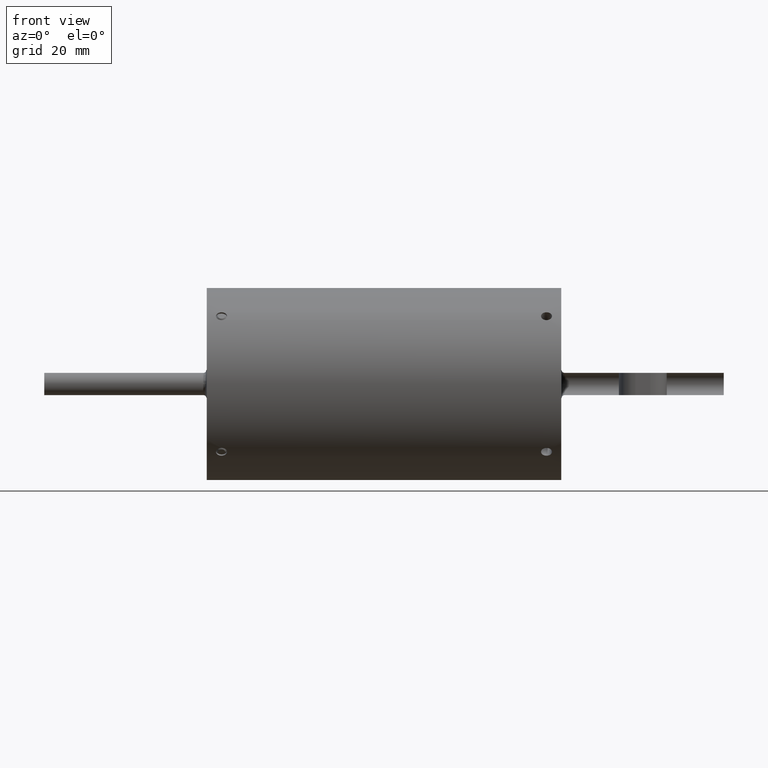
[diagram: clean part render]
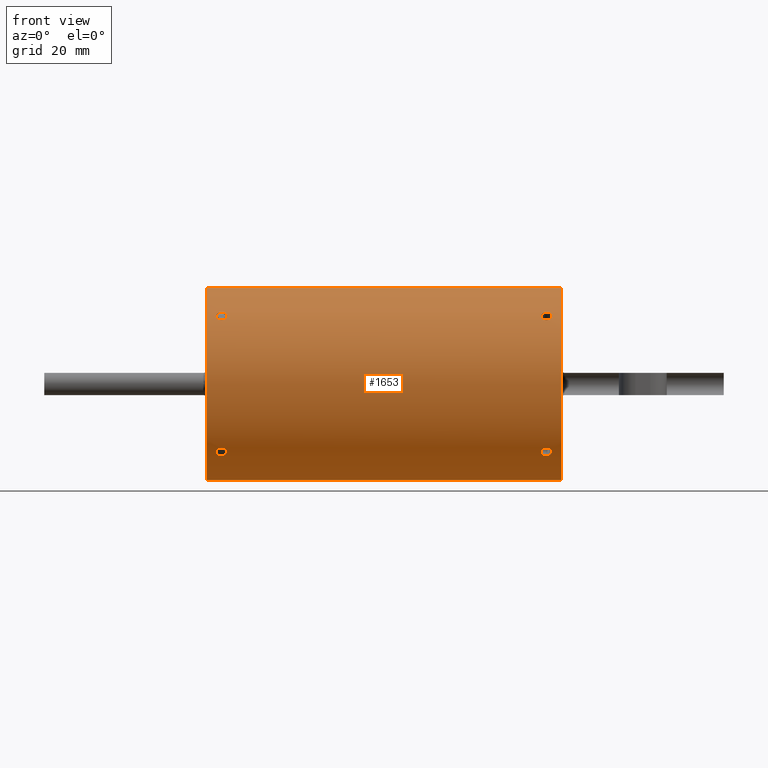
[diagram: same view with one face highlighted and labeled with its STEP entity id]
A machine part, front view. The second image highlights one B-rep face of the part: STEP entity #1653.
In plain terms, the highlighted cylindrical surface (partial cylindrical patch) has radius 20.6375 mm, axis along (-1, -0, -0).
Its self-contained STEP definition (entity closure, byte-faithful):
#232 = ORIENTED_EDGE ( 'NONE', *, *, #3644, .T. ) ;
#294 = VERTEX_POINT ( 'NONE', #4615 ) ;
#295 = DIRECTION ( 'NONE',  ( -1.000000000000000000, -0.0000000000000000000, -0.0000000000000000000 ) ) ;
#418 = ORIENTED_EDGE ( 'NONE', *, *, #4808, .T. ) ;
#495 = CARTESIAN_POINT ( 'NONE',  ( -1.375000000000000200, -0.6067129692111641300, 0.5404217084749399800 ) ) ;
#523 = EDGE_CURVE ( 'NONE', #294, #4763, #5237, .T. ) ;
#811 = EDGE_CURVE ( 'NONE', #294, #2682, #8096, .T. ) ;
#882 = CARTESIAN_POINT ( 'NONE',  ( 1.375000000000000200, -0.6067129692111716800, -0.5404217084749315400 ) ) ;
#1182 = CARTESIAN_POINT ( 'NONE',  ( -1.500000000000000200, 9.950255243072245600E-017, -0.8125000000000000000 ) ) ;
#1273 = B_SPLINE_CURVE_WITH_KNOTS ( 'NONE', 3,
 ( #5592, #5658, #5506, #5469, #5444, #5414, #5392, #5359, #5326, #5320, #5304, #5287, #5281, #5243, #5230, #5213, #5159, #5147 ),
 .UNSPECIFIED., .F., .F.,
 ( 4, 2, 2, 2, 2, 2, 2, 2, 4 ),
 ( 5.490310735162859300E-016, 0.0004653032024160632100, 0.0009306064048315773900, 0.001395909607247091500, 0.001861212809662605700, 0.002326516012078120000, 0.002791819214493633900, 0.003257122416909148100, 0.003722425619324662400 ),
 .UNSPECIFIED. ) ;
#1342 = CARTESIAN_POINT ( 'NONE',  ( -1.500000000000000200, 0.0000000000000000000, 0.8125000000000000000 ) ) ;
#1465 = B_SPLINE_CURVE_WITH_KNOTS ( 'NONE', 3,
 ( #9398, #6456, #9571, #9537, #9500, #9466, #9420, #9251, #9222, #9151, #8601, #8570, #8534, #8497, #8460, #8424, #8052, #8028 ),
 .UNSPECIFIED., .F., .F.,
 ( 4, 2, 2, 2, 2, 2, 2, 2, 4 ),
 ( 0.003722425619324662400, 0.004187729220032486400, 0.004653032820740311300, 0.005118336421448135300, 0.005583640022155960200, 0.006048943622863784200, 0.006514247223571608200, 0.006979550824279432200, 0.007444854424987257100 ),
 .UNSPECIFIED. ) ;
#1473 = EDGE_CURVE ( 'NONE', #8876, #7247, #3316, .T. ) ;
#1491 = CARTESIAN_POINT ( 'NONE',  ( 1.375000000000000200, -0.5404217084749337600, -0.6067129692111697900 ) ) ;
#1590 = CARTESIAN_POINT ( 'NONE',  ( 1.375000000000000200, -0.6067129692111641300, 0.5404217084749399800 ) ) ;
#1653 = ADVANCED_FACE ( 'NONE', ( #6485, #8473, #2459, #4366, #2188 ), #9300, .T. ) ;
#1664 = CARTESIAN_POINT ( 'NONE',  ( 1.381194354719359300, -0.6067129692111642400, 0.5404217084749400900 ) ) ;
#1959 = DIRECTION ( 'NONE',  ( 0.0000000000000000000, 0.0000000000000000000, 1.000000000000000000 ) ) ;
#1976 = CIRCLE ( 'NONE', #8802, 0.8125000000000000000 ) ;
#2068 = CARTESIAN_POINT ( 'NONE',  ( 1.375000000000000200, -0.6067129692111641300, 0.5404217084749399800 ) ) ;
#2148 = ORIENTED_EDGE ( 'NONE', *, *, #4728, .T. ) ;
#2188 = FACE_BOUND ( 'NONE', #9430, .T. ) ;
#2216 = DIRECTION ( 'NONE',  ( -1.000000000000000000, -0.0000000000000000000, -0.0000000000000000000 ) ) ;
#2232 = VERTEX_POINT ( 'NONE', #8093 ) ;
#2249 = CARTESIAN_POINT ( 'NONE',  ( 1.387284325218666000, -0.6059002631434139400, 0.5413378669100412700 ) ) ;
#2359 = CARTESIAN_POINT ( 'NONE',  ( 1.398640609744779000, -0.6027466088351831600, 0.5448470799826850000 ) ) ;
#2401 = CARTESIAN_POINT ( 'NONE',  ( 1.403797482259926400, -0.6004368981637416800, 0.5474038556743936500 ) ) ;
#2402 = EDGE_CURVE ( 'NONE', #2232, #6836, #1273, .T. ) ;
#2441 = CARTESIAN_POINT ( 'NONE',  ( 1.412541206956776000, -0.5944979079309594700, 0.5538480724435181900 ) ) ;
#2459 = FACE_BOUND ( 'NONE', #9675, .T. ) ;
#2476 = CARTESIAN_POINT ( 'NONE',  ( 1.415976050844995000, -0.5909688127341776700, 0.5576238351625277800 ) ) ;
#2643 = B_SPLINE_CURVE_WITH_KNOTS ( 'NONE', 3,
 ( #7328, #7620, #7285, #7276, #7265, #7244, #7233, #7230, #7218, #7203, #7192, #7165, #7147, #7131, #7115, #7078, #7032, #7013 ),
 .UNSPECIFIED., .F., .F.,
 ( 4, 2, 2, 2, 2, 2, 2, 2, 4 ),
 ( 0.003722425619324667200, 0.004187729220032493400, 0.004653032820740319100, 0.005118336421448144900, 0.005583640022155970600, 0.006048943622863796300, 0.006514247223571622100, 0.006979550824279448700, 0.007444854424987274400 ),
 .UNSPECIFIED. ) ;
#2682 = VERTEX_POINT ( 'NONE', #1182 ) ;
#2898 = DIRECTION ( 'NONE',  ( 0.0000000000000000000, 0.0000000000000000000, 1.000000000000000000 ) ) ;
#2932 = DIRECTION ( 'NONE',  ( -1.000000000000000000, -0.0000000000000000000, -0.0000000000000000000 ) ) ;
#2938 = CARTESIAN_POINT ( 'NONE',  ( 1.500000000000000200, 0.0000000000000000000, 0.0000000000000000000 ) ) ;
#2979 = CARTESIAN_POINT ( 'NONE',  ( 1.500000000000000200, 0.0000000000000000000, 0.0000000000000000000 ) ) ;
#3138 = CARTESIAN_POINT ( 'NONE',  ( 1.420667048215037400, -0.5831190707390199200, 0.5658273840194298900 ) ) ;
#3262 = CARTESIAN_POINT ( 'NONE',  ( 1.421879188784005400, -0.5788254297754337200, 0.5702234314123456600 ) ) ;
#3292 = CARTESIAN_POINT ( 'NONE',  ( 1.421870789102742900, -0.5701775572551545100, 0.5788706186091422400 ) ) ;
#3316 = B_SPLINE_CURVE_WITH_KNOTS ( 'NONE', 3,
 ( #5617, #5401, #5362, #5345, #5333, #5309, #5295, #5269, #5253, #5225, #5199, #5183, #5162, #5154, #5129, #5047, #5023, #5011 ),
 .UNSPECIFIED., .F., .F.,
 ( 4, 2, 2, 2, 2, 2, 2, 2, 4 ),
 ( 0.003722425619324667200, 0.004187729220032493400, 0.004653032820740319100, 0.005118336421448144900, 0.005583640022155970600, 0.006048943622863796300, 0.006514247223571622100, 0.006979550824279448700, 0.007444854424987274400 ),
 .UNSPECIFIED. ) ;
#3371 = CARTESIAN_POINT ( 'NONE',  ( -1.375000000000000200, -0.5404217084749337600, -0.6067129692111697900 ) ) ;
#3381 = VERTEX_POINT ( 'NONE', #9034 ) ;
#3644 = EDGE_CURVE ( 'NONE', #3882, #8974, #4139, .T. ) ;
#3781 = ORIENTED_EDGE ( 'NONE', *, *, #4749, .T. ) ;
#3798 = B_SPLINE_CURVE_WITH_KNOTS ( 'NONE', 3,
 ( #9447, #9353, #9105, #9069, #9015, #8931, #8695, #8664, #8634, #8626, #8592, #8564, #8556, #8481, #8448, #8415, #8381, #8341 ),
 .UNSPECIFIED., .F., .F.,
 ( 4, 2, 2, 2, 2, 2, 2, 2, 4 ),
 ( 5.490310735162859300E-016, 0.0004653032024160632100, 0.0009306064048315773900, 0.001395909607247091500, 0.001861212809662605700, 0.002326516012078120000, 0.002791819214493633900, 0.003257122416909148100, 0.003722425619324662400 ),
 .UNSPECIFIED. ) ;
#3880 = CARTESIAN_POINT ( 'NONE',  ( 1.420638414182216400, -0.5657637578153528200, 0.5831804503088706700 ) ) ;
#3882 = VERTEX_POINT ( 'NONE', #1491 ) ;
#3956 = CARTESIAN_POINT ( 'NONE',  ( 1.415961633120369300, -0.5576122985765964400, 0.5909793496865444200 ) ) ;
#3997 = CARTESIAN_POINT ( 'NONE',  ( 1.412469314699299900, -0.5537907447179333300, 0.5945509083305938700 ) ) ;
#4139 = B_SPLINE_CURVE_WITH_KNOTS ( 'NONE', 3,
 ( #7228, #8305, #7253, #7201, #7190, #7129, #7087, #7046, #6984, #6797, #6769, #6737, #6700, #6675, #6653, #6585, #6558, #6522 ),
 .UNSPECIFIED., .F., .F.,
 ( 4, 2, 2, 2, 2, 2, 2, 2, 4 ),
 ( 0.003722425619324662400, 0.004187729220032486400, 0.004653032820740311300, 0.005118336421448135300, 0.005583640022155960200, 0.006048943622863784200, 0.006514247223571608200, 0.006979550824279432200, 0.007444854424987257100 ),
 .UNSPECIFIED. ) ;
#4276 = B_SPLINE_CURVE_WITH_KNOTS ( 'NONE', 3,
 ( #9134, #8086, #8050, #7851, #7823, #7815, #7751, #7744, #7722, #7715, #7651, #7623, #7563, #7523, #7459, #7362, #7332, #7123 ),
 .UNSPECIFIED., .F., .F.,
 ( 4, 2, 2, 2, 2, 2, 2, 2, 4 ),
 ( 5.490310735162859300E-016, 0.0004653032024160638100, 0.0009306064048315785800, 0.001395909607247093400, 0.001861212809662608100, 0.002326516012078123100, 0.002791819214493637800, 0.003257122416909152500, 0.003722425619324667200 ),
 .UNSPECIFIED. ) ;
#4366 = FACE_BOUND ( 'NONE', #10187, .T. ) ;
#4615 = CARTESIAN_POINT ( 'NONE',  ( 1.500000000000000200, 9.950255243072245600E-017, -0.8125000000000000000 ) ) ;
#4654 = CARTESIAN_POINT ( 'NONE',  ( 1.375000000000000200, -0.5404217084749252100, 0.6067129692111772300 ) ) ;
#4728 = EDGE_CURVE ( 'NONE', #8974, #3882, #3798, .T. ) ;
#4747 = CARTESIAN_POINT ( 'NONE',  ( 1.403823156898221300, -0.5474271438122354500, 0.6004152677518748100 ) ) ;
#4749 = EDGE_CURVE ( 'NONE', #3381, #9018, #4276, .T. ) ;
#4763 = VERTEX_POINT ( 'NONE', #8110 ) ;
#4808 = EDGE_CURVE ( 'NONE', #4958, #2682, #1976, .T. ) ;
#4821 = CARTESIAN_POINT ( 'NONE',  ( 1.398624374755407900, -0.5448404738885853600, 0.6027525682444354600 ) ) ;
#4860 = CARTESIAN_POINT ( 'NONE',  ( 1.387272538377427800, -0.5413358178877889500, 0.6059020818450453500 ) ) ;
#4958 = VERTEX_POINT ( 'NONE', #1342 ) ;
#5011 = CARTESIAN_POINT ( 'NONE',  ( 1.375000000000000200, -0.5404217084749252100, 0.6067129692111772300 ) ) ;
#5023 = CARTESIAN_POINT ( 'NONE',  ( 1.368805634676072400, -0.5404217084749275400, 0.6067129692111753500 ) ) ;
#5047 = CARTESIAN_POINT ( 'NONE',  ( 1.362715674781334900, -0.5413378669100262800, 0.6059002631434270400 ) ) ;
#5129 = CARTESIAN_POINT ( 'NONE',  ( 1.351359390255221400, -0.5448470799826704600, 0.6027466088351962600 ) ) ;
#5147 = CARTESIAN_POINT ( 'NONE',  ( -1.375000000000000200, -0.5404217084749337600, -0.6067129692111697900 ) ) ;
#5154 = CARTESIAN_POINT ( 'NONE',  ( 1.346202517740073400, -0.5474038556743792100, 0.6004368981637547800 ) ) ;
#5159 = CARTESIAN_POINT ( 'NONE',  ( -1.368805645280641200, -0.5404217084749337600, -0.6067129692111699100 ) ) ;
#5162 = CARTESIAN_POINT ( 'NONE',  ( 1.337458793043225100, -0.5538480724435036500, 0.5944979079309730100 ) ) ;
#5183 = CARTESIAN_POINT ( 'NONE',  ( 1.334023949155005200, -0.5576238351625135700, 0.5909688127341910000 ) ) ;
#5199 = CARTESIAN_POINT ( 'NONE',  ( 1.329332951784963700, -0.5658273840194153500, 0.5831190707390341300 ) ) ;
#5213 = CARTESIAN_POINT ( 'NONE',  ( -1.362715674781334500, -0.5413378669100349400, -0.6059002631434194900 ) ) ;
#5225 = CARTESIAN_POINT ( 'NONE',  ( 1.328120811215995200, -0.5702234314123316700, 0.5788254297754477100 ) ) ;
#5230 = CARTESIAN_POINT ( 'NONE',  ( -1.351359390255221400, -0.5448470799826786700, -0.6027466088351887100 ) ) ;
#5237 = CIRCLE ( 'NONE', #7842, 0.8125000000000000000 ) ;
#5243 = CARTESIAN_POINT ( 'NONE',  ( -1.346202517740074000, -0.5474038556743875400, -0.6004368981637473500 ) ) ;
#5253 = CARTESIAN_POINT ( 'NONE',  ( 1.328129210897257800, -0.5788706186091282500, 0.5701775572551687200 ) ) ;
#5269 = CARTESIAN_POINT ( 'NONE',  ( 1.329361585817783400, -0.5831804503088565700, 0.5657637578153669200 ) ) ;
#5281 = CARTESIAN_POINT ( 'NONE',  ( -1.337458793043224900, -0.5538480724435120800, -0.5944979079309652400 ) ) ;
#5287 = CARTESIAN_POINT ( 'NONE',  ( -1.334023949155005200, -0.5576238351625217900, -0.5909688127341834500 ) ) ;
#5291 = ORIENTED_EDGE ( 'NONE', *, *, #2402, .T. ) ;
#5295 = CARTESIAN_POINT ( 'NONE',  ( 1.334038366879631600, -0.5909793496865306500, 0.5576122985766107700 ) ) ;
#5304 = CARTESIAN_POINT ( 'NONE',  ( -1.329332951784963000, -0.5658273840194236700, -0.5831190707390258000 ) ) ;
#5309 = CARTESIAN_POINT ( 'NONE',  ( 1.337530685300700500, -0.5945509083305802200, 0.5537907447179479800 ) ) ;
#5320 = CARTESIAN_POINT ( 'NONE',  ( -1.328120811215995000, -0.5702234314123398900, -0.5788254297754397100 ) ) ;
#5326 = CARTESIAN_POINT ( 'NONE',  ( -1.328129210897257800, -0.5788706186091364700, -0.5701775572551605100 ) ) ;
#5333 = CARTESIAN_POINT ( 'NONE',  ( 1.346176843101779100, -0.6004152677518614900, 0.5474271438122501100 ) ) ;
#5345 = CARTESIAN_POINT ( 'NONE',  ( 1.351375625244591400, -0.6027525682444220300, 0.5448404738886001300 ) ) ;
#5359 = CARTESIAN_POINT ( 'NONE',  ( -1.329361585817783400, -0.5831804503088645600, -0.5657637578153587000 ) ) ;
#5362 = CARTESIAN_POINT ( 'NONE',  ( 1.362727461622572600, -0.6059020818450322500, 0.5413358178878033800 ) ) ;
#5392 = CARTESIAN_POINT ( 'NONE',  ( -1.334038366879631600, -0.5909793496865385400, -0.5576122985766024400 ) ) ;
#5401 = CARTESIAN_POINT ( 'NONE',  ( 1.368805639978369700, -0.6067129692111641300, 0.5404217084749397500 ) ) ;
#5414 = CARTESIAN_POINT ( 'NONE',  ( -1.337530685300700500, -0.5945509083305879900, -0.5537907447179395400 ) ) ;
#5444 = CARTESIAN_POINT ( 'NONE',  ( -1.346176843101779300, -0.6004152677518690400, -0.5474271438122416700 ) ) ;
#5469 = CARTESIAN_POINT ( 'NONE',  ( -1.351375625244592300, -0.6027525682444299100, -0.5448404738885914700 ) ) ;
#5506 = CARTESIAN_POINT ( 'NONE',  ( -1.362727461622572600, -0.6059020818450398000, -0.5413358178877951700 ) ) ;
#5540 = DIRECTION ( 'NONE',  ( 0.0000000000000000000, 0.0000000000000000000, 1.000000000000000000 ) ) ;
#5557 = ORIENTED_EDGE ( 'NONE', *, *, #9282, .T. ) ;
#5570 = DIRECTION ( 'NONE',  ( 1.000000000000000000, 0.0000000000000000000, 0.0000000000000000000 ) ) ;
#5577 = CARTESIAN_POINT ( 'NONE',  ( -1.500000000000000200, 0.0000000000000000000, 0.0000000000000000000 ) ) ;
#5592 = CARTESIAN_POINT ( 'NONE',  ( -1.375000000000000200, -0.6067129692111716800, -0.5404217084749315400 ) ) ;
#5617 = CARTESIAN_POINT ( 'NONE',  ( 1.375000000000000200, -0.6067129692111641300, 0.5404217084749399800 ) ) ;
#5658 = CARTESIAN_POINT ( 'NONE',  ( -1.368805639978391900, -0.6067129692111734600, -0.5404217084749293200 ) ) ;
#5697 = CARTESIAN_POINT ( 'NONE',  ( 1.381194360021609000, -0.5404217084749231000, 0.6067129692111791200 ) ) ;
#6028 = ORIENTED_EDGE ( 'NONE', *, *, #8450, .T. ) ;
#6029 = ORIENTED_EDGE ( 'NONE', *, *, #8595, .T. ) ;
#6146 = CARTESIAN_POINT ( 'NONE',  ( 1.500000000000000200, 0.0000000000000000000, 0.8125000000000000000 ) ) ;
#6163 = DIRECTION ( 'NONE',  ( -1.000000000000000000, -0.0000000000000000000, -0.0000000000000000000 ) ) ;
#6456 = CARTESIAN_POINT ( 'NONE',  ( -1.381194360021630800, -0.5404217084749336500, -0.6067129692111696800 ) ) ;
#6479 = CARTESIAN_POINT ( 'NONE',  ( 1.375000000000000200, -0.5404217084749252100, 0.6067129692111772300 ) ) ;
#6485 = FACE_OUTER_BOUND ( 'NONE', #7673, .T. ) ;
#6522 = CARTESIAN_POINT ( 'NONE',  ( 1.375000000000000200, -0.6067129692111716800, -0.5404217084749315400 ) ) ;
#6558 = CARTESIAN_POINT ( 'NONE',  ( 1.368805634676072400, -0.6067129692111697900, -0.5404217084749337600 ) ) ;
#6585 = CARTESIAN_POINT ( 'NONE',  ( 1.362715674781334900, -0.6059002631434213800, -0.5413378669100326100 ) ) ;
#6653 = CARTESIAN_POINT ( 'NONE',  ( 1.351359390255221400, -0.6027466088351906000, -0.5448470799826766700 ) ) ;
#6675 = CARTESIAN_POINT ( 'NONE',  ( 1.346202517740073400, -0.6004368981637492300, -0.5474038556743856500 ) ) ;
#6700 = CARTESIAN_POINT ( 'NONE',  ( 1.337458793043225100, -0.5944979079309673500, -0.5538480724435096400 ) ) ;
#6737 = CARTESIAN_POINT ( 'NONE',  ( 1.334023949155005200, -0.5909688127341853300, -0.5576238351625197900 ) ) ;
#6769 = CARTESIAN_POINT ( 'NONE',  ( 1.329332951784963700, -0.5831190707390283600, -0.5658273840194215600 ) ) ;
#6797 = CARTESIAN_POINT ( 'NONE',  ( 1.328120811215995200, -0.5788254297754419400, -0.5702234314123375600 ) ) ;
#6836 = VERTEX_POINT ( 'NONE', #3371 ) ;
#6984 = CARTESIAN_POINT ( 'NONE',  ( 1.328129210897257800, -0.5701775572551628400, -0.5788706186091340200 ) ) ;
#7013 = CARTESIAN_POINT ( 'NONE',  ( -1.375000000000000200, -0.5404217084749252100, 0.6067129692111772300 ) ) ;
#7032 = CARTESIAN_POINT ( 'NONE',  ( -1.381194365323928700, -0.5404217084749275400, 0.6067129692111753500 ) ) ;
#7046 = CARTESIAN_POINT ( 'NONE',  ( 1.329361585817783400, -0.5657637578153611500, -0.5831804503088623400 ) ) ;
#7078 = CARTESIAN_POINT ( 'NONE',  ( -1.387284325218665700, -0.5413378669100262800, 0.6059002631434270400 ) ) ;
#7085 = ORIENTED_EDGE ( 'NONE', *, *, #523, .T. ) ;
#7087 = CARTESIAN_POINT ( 'NONE',  ( 1.334038366879631600, -0.5576122985766047700, -0.5909793496865364300 ) ) ;
#7101 = B_SPLINE_CURVE_WITH_KNOTS ( 'NONE', 3,
 ( #6479, #5697, #4860, #4821, #4747, #3997, #3956, #3880, #3292, #3262, #3138, #2476, #2441, #2401, #2359, #2249, #1664, #1590 ),
 .UNSPECIFIED., .F., .F.,
 ( 4, 2, 2, 2, 2, 2, 2, 2, 4 ),
 ( 5.490310735162859300E-016, 0.0004653032024160638100, 0.0009306064048315785800, 0.001395909607247093400, 0.001861212809662608100, 0.002326516012078123100, 0.002791819214493637800, 0.003257122416909152500, 0.003722425619324667200 ),
 .UNSPECIFIED. ) ;
#7115 = CARTESIAN_POINT ( 'NONE',  ( -1.398640609744779200, -0.5448470799826704600, 0.6027466088351962600 ) ) ;
#7123 = CARTESIAN_POINT ( 'NONE',  ( -1.375000000000000200, -0.6067129692111641300, 0.5404217084749399800 ) ) ;
#7129 = CARTESIAN_POINT ( 'NONE',  ( 1.337530685300700500, -0.5537907447179417600, -0.5945509083305857700 ) ) ;
#7131 = CARTESIAN_POINT ( 'NONE',  ( -1.403797482259927100, -0.5474038556743792100, 0.6004368981637547800 ) ) ;
#7147 = CARTESIAN_POINT ( 'NONE',  ( -1.412541206956775300, -0.5538480724435036500, 0.5944979079309730100 ) ) ;
#7165 = CARTESIAN_POINT ( 'NONE',  ( -1.415976050844995000, -0.5576238351625135700, 0.5909688127341910000 ) ) ;
#7190 = CARTESIAN_POINT ( 'NONE',  ( 1.346176843101779100, -0.5474271438122438900, -0.6004152677518670400 ) ) ;
#7192 = CARTESIAN_POINT ( 'NONE',  ( -1.420667048215037400, -0.5658273840194153500, 0.5831190707390341300 ) ) ;
#7201 = CARTESIAN_POINT ( 'NONE',  ( 1.351375625244591400, -0.5448404738885940200, -0.6027525682444275800 ) ) ;
#7203 = CARTESIAN_POINT ( 'NONE',  ( -1.421879188784005000, -0.5702234314123316700, 0.5788254297754477100 ) ) ;
#7218 = CARTESIAN_POINT ( 'NONE',  ( -1.421870789102742900, -0.5788706186091282500, 0.5701775572551687200 ) ) ;
#7228 = CARTESIAN_POINT ( 'NONE',  ( 1.375000000000000200, -0.5404217084749337600, -0.6067129692111697900 ) ) ;
#7230 = CARTESIAN_POINT ( 'NONE',  ( -1.420638414182216400, -0.5831804503088565700, 0.5657637578153669200 ) ) ;
#7233 = CARTESIAN_POINT ( 'NONE',  ( -1.415961633120369300, -0.5909793496865306500, 0.5576122985766107700 ) ) ;
#7244 = CARTESIAN_POINT ( 'NONE',  ( -1.412469314699299900, -0.5945509083305802200, 0.5537907447179479800 ) ) ;
#7247 = VERTEX_POINT ( 'NONE', #4654 ) ;
#7253 = CARTESIAN_POINT ( 'NONE',  ( 1.362727461622572600, -0.5413358178877972800, -0.6059020818450379100 ) ) ;
#7265 = CARTESIAN_POINT ( 'NONE',  ( -1.403823156898221600, -0.6004152677518614900, 0.5474271438122501100 ) ) ;
#7276 = CARTESIAN_POINT ( 'NONE',  ( -1.398624374755408800, -0.6027525682444220300, 0.5448404738886001300 ) ) ;
#7285 = CARTESIAN_POINT ( 'NONE',  ( -1.387272538377428000, -0.6059020818450322500, 0.5413358178878033800 ) ) ;
#7328 = CARTESIAN_POINT ( 'NONE',  ( -1.375000000000000200, -0.6067129692111641300, 0.5404217084749399800 ) ) ;
#7332 = CARTESIAN_POINT ( 'NONE',  ( -1.368805645280641200, -0.6067129692111642400, 0.5404217084749400900 ) ) ;
#7362 = CARTESIAN_POINT ( 'NONE',  ( -1.362715674781334500, -0.6059002631434139400, 0.5413378669100412700 ) ) ;
#7459 = CARTESIAN_POINT ( 'NONE',  ( -1.351359390255221400, -0.6027466088351831600, 0.5448470799826850000 ) ) ;
#7523 = CARTESIAN_POINT ( 'NONE',  ( -1.346202517740074000, -0.6004368981637416800, 0.5474038556743936500 ) ) ;
#7563 = CARTESIAN_POINT ( 'NONE',  ( -1.337458793043224200, -0.5944979079309594700, 0.5538480724435181900 ) ) ;
#7620 = CARTESIAN_POINT ( 'NONE',  ( -1.381194360021630800, -0.6067129692111641300, 0.5404217084749397500 ) ) ;
#7623 = CARTESIAN_POINT ( 'NONE',  ( -1.334023949155005900, -0.5909688127341776700, 0.5576238351625277800 ) ) ;
#7651 = CARTESIAN_POINT ( 'NONE',  ( -1.329332951784963000, -0.5831190707390199200, 0.5658273840194298900 ) ) ;
#7673 = EDGE_LOOP ( 'NONE', ( #8922, #7085, #6029, #418 ) ) ;
#7715 = CARTESIAN_POINT ( 'NONE',  ( -1.328120811215995000, -0.5788254297754337200, 0.5702234314123456600 ) ) ;
#7722 = CARTESIAN_POINT ( 'NONE',  ( -1.328129210897257800, -0.5701775572551545100, 0.5788706186091422400 ) ) ;
#7744 = CARTESIAN_POINT ( 'NONE',  ( -1.329361585817783400, -0.5657637578153528200, 0.5831804503088706700 ) ) ;
#7751 = CARTESIAN_POINT ( 'NONE',  ( -1.334038366879631600, -0.5576122985765964400, 0.5909793496865444200 ) ) ;
#7815 = CARTESIAN_POINT ( 'NONE',  ( -1.337530685300700500, -0.5537907447179333300, 0.5945509083305938700 ) ) ;
#7823 = CARTESIAN_POINT ( 'NONE',  ( -1.346176843101779300, -0.5474271438122354500, 0.6004152677518748100 ) ) ;
#7842 = AXIS2_PLACEMENT_3D ( 'NONE', #2938, #2932, #2898 ) ;
#7851 = CARTESIAN_POINT ( 'NONE',  ( -1.351375625244592300, -0.5448404738885853600, 0.6027525682444354600 ) ) ;
#8028 = CARTESIAN_POINT ( 'NONE',  ( -1.375000000000000200, -0.6067129692111716800, -0.5404217084749315400 ) ) ;
#8050 = CARTESIAN_POINT ( 'NONE',  ( -1.362727461622572600, -0.5413358178877889500, 0.6059020818450453500 ) ) ;
#8052 = CARTESIAN_POINT ( 'NONE',  ( -1.381194365323928700, -0.6067129692111697900, -0.5404217084749337600 ) ) ;
#8086 = CARTESIAN_POINT ( 'NONE',  ( -1.368805639978391900, -0.5404217084749231000, 0.6067129692111791200 ) ) ;
#8093 = CARTESIAN_POINT ( 'NONE',  ( -1.375000000000000200, -0.6067129692111716800, -0.5404217084749315400 ) ) ;
#8096 = LINE ( 'NONE', #9479, #9888 ) ;
#8110 = CARTESIAN_POINT ( 'NONE',  ( 1.500000000000000200, 0.0000000000000000000, 0.8125000000000000000 ) ) ;
#8305 = CARTESIAN_POINT ( 'NONE',  ( 1.368805639978369700, -0.5404217084749336500, -0.6067129692111696800 ) ) ;
#8341 = CARTESIAN_POINT ( 'NONE',  ( 1.375000000000000200, -0.5404217084749337600, -0.6067129692111697900 ) ) ;
#8381 = CARTESIAN_POINT ( 'NONE',  ( 1.381194354719359300, -0.5404217084749337600, -0.6067129692111699100 ) ) ;
#8415 = CARTESIAN_POINT ( 'NONE',  ( 1.387284325218666000, -0.5413378669100349400, -0.6059002631434194900 ) ) ;
#8424 = CARTESIAN_POINT ( 'NONE',  ( -1.387284325218665700, -0.6059002631434213800, -0.5413378669100326100 ) ) ;
#8432 = ORIENTED_EDGE ( 'NONE', *, *, #9521, .T. ) ;
#8448 = CARTESIAN_POINT ( 'NONE',  ( 1.398640609744779000, -0.5448470799826786700, -0.6027466088351887100 ) ) ;
#8450 = EDGE_CURVE ( 'NONE', #9018, #3381, #2643, .T. ) ;
#8460 = CARTESIAN_POINT ( 'NONE',  ( -1.398640609744779200, -0.6027466088351906000, -0.5448470799826766700 ) ) ;
#8473 = FACE_BOUND ( 'NONE', #9906, .T. ) ;
#8481 = CARTESIAN_POINT ( 'NONE',  ( 1.403797482259927300, -0.5474038556743875400, -0.6004368981637473500 ) ) ;
#8497 = CARTESIAN_POINT ( 'NONE',  ( -1.403797482259927100, -0.6004368981637492300, -0.5474038556743856500 ) ) ;
#8534 = CARTESIAN_POINT ( 'NONE',  ( -1.412541206956775300, -0.5944979079309673500, -0.5538480724435096400 ) ) ;
#8556 = CARTESIAN_POINT ( 'NONE',  ( 1.412541206956776000, -0.5538480724435120800, -0.5944979079309652400 ) ) ;
#8564 = CARTESIAN_POINT ( 'NONE',  ( 1.415976050844994600, -0.5576238351625217900, -0.5909688127341834500 ) ) ;
#8570 = CARTESIAN_POINT ( 'NONE',  ( -1.415976050844995000, -0.5909688127341853300, -0.5576238351625197900 ) ) ;
#8592 = CARTESIAN_POINT ( 'NONE',  ( 1.420667048215037400, -0.5658273840194236700, -0.5831190707390258000 ) ) ;
#8595 = EDGE_CURVE ( 'NONE', #4763, #4958, #8886, .T. ) ;
#8601 = CARTESIAN_POINT ( 'NONE',  ( -1.420667048215037400, -0.5831190707390283600, -0.5658273840194215600 ) ) ;
#8626 = CARTESIAN_POINT ( 'NONE',  ( 1.421879188784005400, -0.5702234314123398900, -0.5788254297754397100 ) ) ;
#8634 = CARTESIAN_POINT ( 'NONE',  ( 1.421870789102742900, -0.5788706186091364700, -0.5701775572551605100 ) ) ;
#8647 = AXIS2_PLACEMENT_3D ( 'NONE', #2979, #2216, #1959 ) ;
#8664 = CARTESIAN_POINT ( 'NONE',  ( 1.420638414182216400, -0.5831804503088645600, -0.5657637578153587000 ) ) ;
#8695 = CARTESIAN_POINT ( 'NONE',  ( 1.415961633120369300, -0.5909793496865385400, -0.5576122985766024400 ) ) ;
#8801 = ORIENTED_EDGE ( 'NONE', *, *, #1473, .T. ) ;
#8802 = AXIS2_PLACEMENT_3D ( 'NONE', #5577, #5570, #5540 ) ;
#8876 = VERTEX_POINT ( 'NONE', #2068 ) ;
#8886 = LINE ( 'NONE', #6146, #9101 ) ;
#8922 = ORIENTED_EDGE ( 'NONE', *, *, #811, .F. ) ;
#8931 = CARTESIAN_POINT ( 'NONE',  ( 1.412469314699299900, -0.5945509083305879900, -0.5537907447179395400 ) ) ;
#8974 = VERTEX_POINT ( 'NONE', #882 ) ;
#9015 = CARTESIAN_POINT ( 'NONE',  ( 1.403823156898221300, -0.6004152677518690400, -0.5474271438122416700 ) ) ;
#9018 = VERTEX_POINT ( 'NONE', #495 ) ;
#9034 = CARTESIAN_POINT ( 'NONE',  ( -1.375000000000000200, -0.5404217084749252100, 0.6067129692111772300 ) ) ;
#9069 = CARTESIAN_POINT ( 'NONE',  ( 1.398624374755407900, -0.6027525682444299100, -0.5448404738885914700 ) ) ;
#9101 = VECTOR ( 'NONE', #6163, 39.37007874015748100 ) ;
#9105 = CARTESIAN_POINT ( 'NONE',  ( 1.387272538377427800, -0.6059020818450398000, -0.5413358178877951700 ) ) ;
#9134 = CARTESIAN_POINT ( 'NONE',  ( -1.375000000000000200, -0.5404217084749252100, 0.6067129692111772300 ) ) ;
#9151 = CARTESIAN_POINT ( 'NONE',  ( -1.421879188784005000, -0.5788254297754419400, -0.5702234314123375600 ) ) ;
#9222 = CARTESIAN_POINT ( 'NONE',  ( -1.421870789102742900, -0.5701775572551628400, -0.5788706186091340200 ) ) ;
#9251 = CARTESIAN_POINT ( 'NONE',  ( -1.420638414182216400, -0.5657637578153611500, -0.5831804503088623400 ) ) ;
#9282 = EDGE_CURVE ( 'NONE', #6836, #2232, #1465, .T. ) ;
#9300 = CYLINDRICAL_SURFACE ( 'NONE', #8647, 0.8125000000000000000 ) ;
#9353 = CARTESIAN_POINT ( 'NONE',  ( 1.381194360021609000, -0.6067129692111734600, -0.5404217084749293200 ) ) ;
#9398 = CARTESIAN_POINT ( 'NONE',  ( -1.375000000000000200, -0.5404217084749337600, -0.6067129692111697900 ) ) ;
#9420 = CARTESIAN_POINT ( 'NONE',  ( -1.415961633120369300, -0.5576122985766047700, -0.5909793496865364300 ) ) ;
#9430 = EDGE_LOOP ( 'NONE', ( #8801, #8432 ) ) ;
#9447 = CARTESIAN_POINT ( 'NONE',  ( 1.375000000000000200, -0.6067129692111716800, -0.5404217084749315400 ) ) ;
#9466 = CARTESIAN_POINT ( 'NONE',  ( -1.412469314699299900, -0.5537907447179417600, -0.5945509083305857700 ) ) ;
#9479 = CARTESIAN_POINT ( 'NONE',  ( 1.500000000000000200, 9.950255243072245600E-017, -0.8125000000000000000 ) ) ;
#9500 = CARTESIAN_POINT ( 'NONE',  ( -1.403823156898221600, -0.5474271438122438900, -0.6004152677518670400 ) ) ;
#9521 = EDGE_CURVE ( 'NONE', #7247, #8876, #7101, .T. ) ;
#9537 = CARTESIAN_POINT ( 'NONE',  ( -1.398624374755408800, -0.5448404738885940200, -0.6027525682444275800 ) ) ;
#9571 = CARTESIAN_POINT ( 'NONE',  ( -1.387272538377428000, -0.5413358178877972800, -0.6059020818450379100 ) ) ;
#9675 = EDGE_LOOP ( 'NONE', ( #232, #2148 ) ) ;
#9888 = VECTOR ( 'NONE', #295, 39.37007874015748100 ) ;
#9906 = EDGE_LOOP ( 'NONE', ( #5557, #5291 ) ) ;
#10187 = EDGE_LOOP ( 'NONE', ( #6028, #3781 ) ) ;